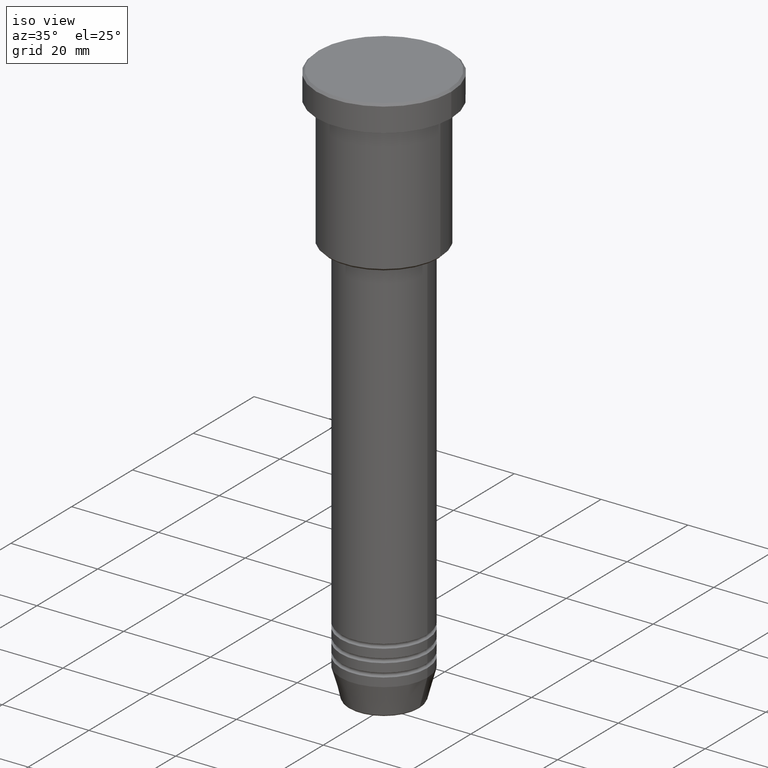
[diagram: clean part render]
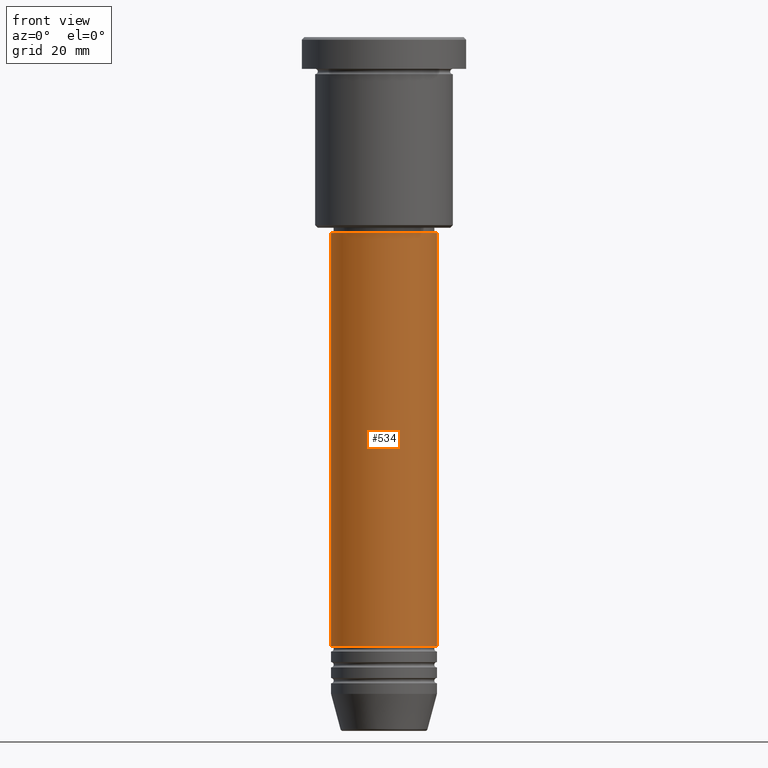
[diagram: tour spotlight — one face highlighted and labeled with its STEP entity id]
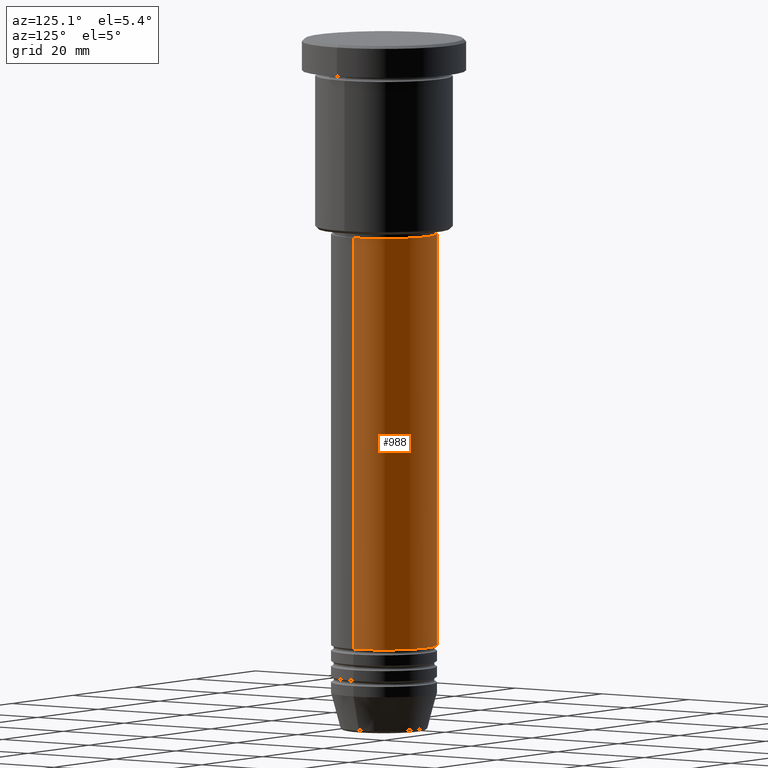
[diagram: tour spotlight — one face highlighted and labeled with its STEP entity id]
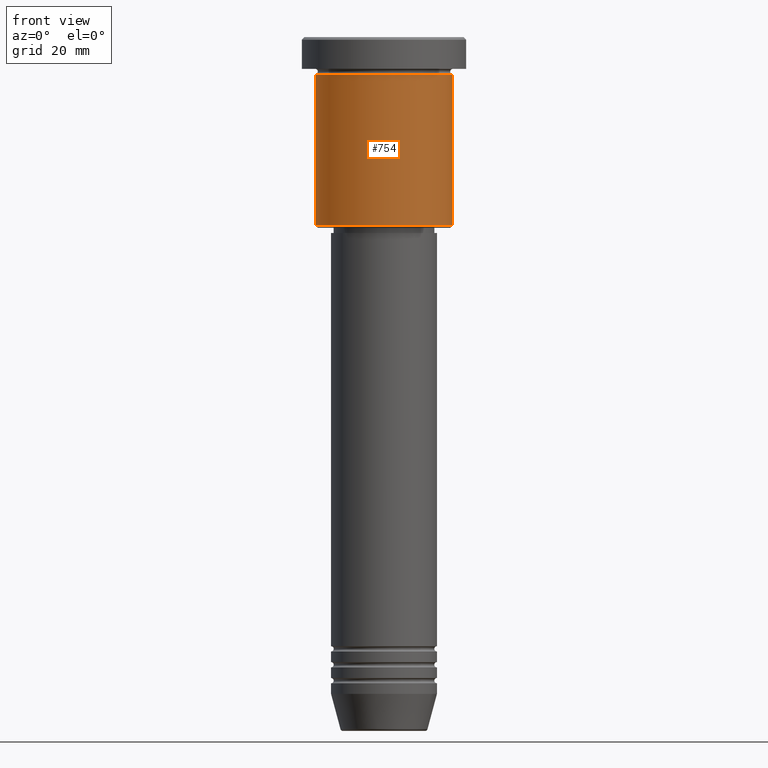
[diagram: tour spotlight — one face highlighted and labeled with its STEP entity id]
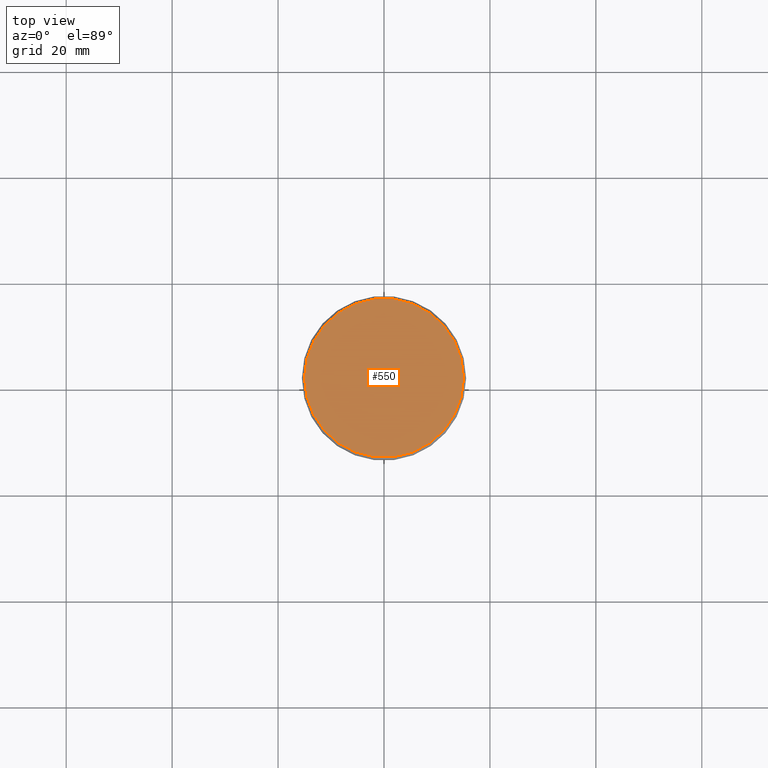
[diagram: tour spotlight — one face highlighted and labeled with its STEP entity id]
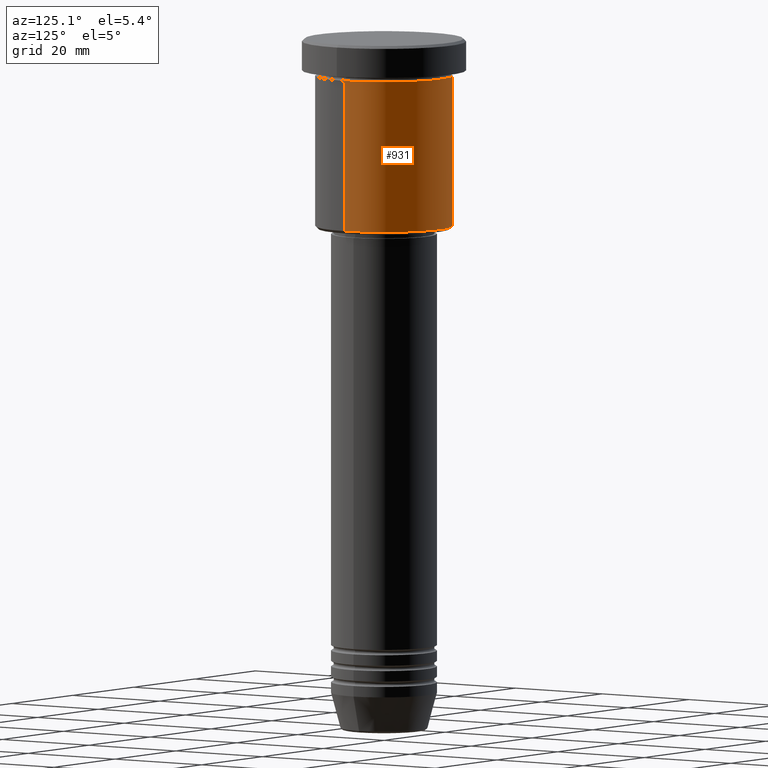
[diagram: tour spotlight — one face highlighted and labeled with its STEP entity id]
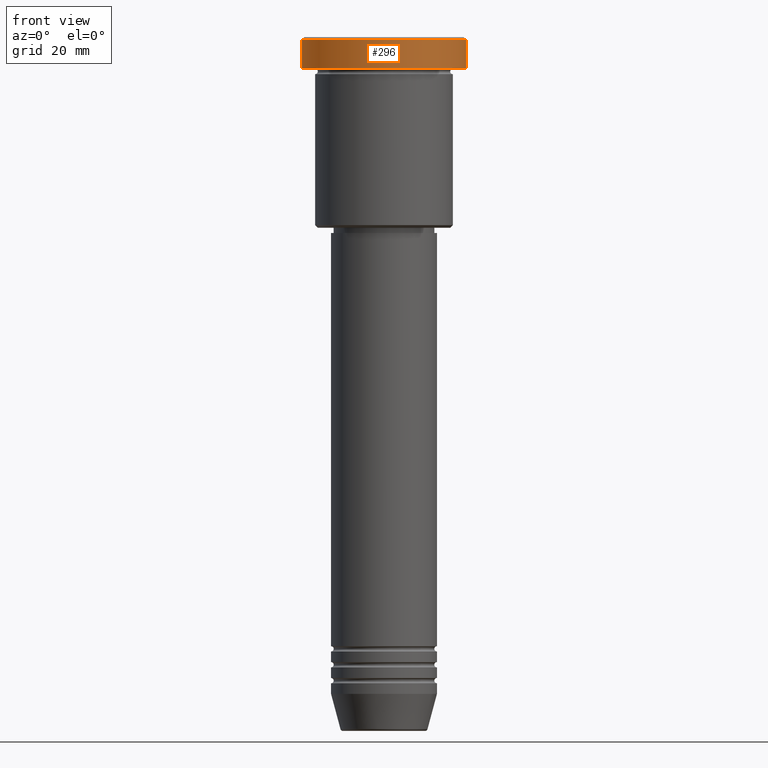
[diagram: tour spotlight — one face highlighted and labeled with its STEP entity id]
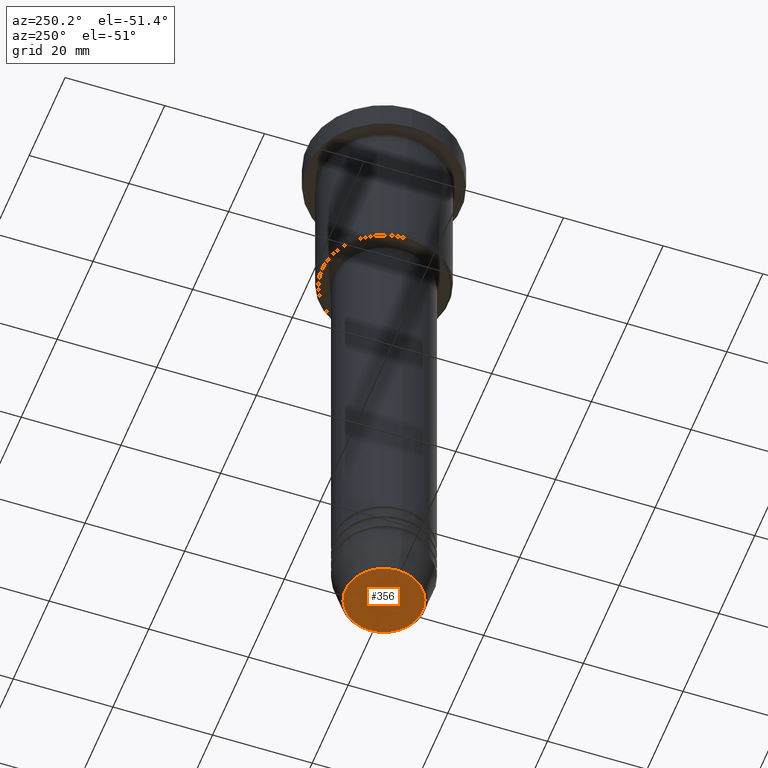
[diagram: tour spotlight — one face highlighted and labeled with its STEP entity id]
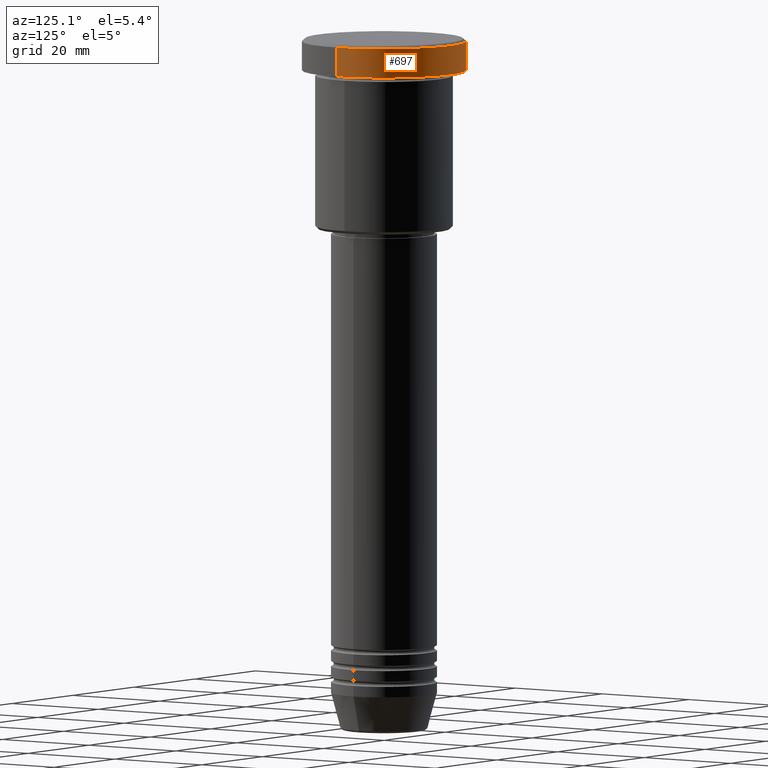
[diagram: tour spotlight — one face highlighted and labeled with its STEP entity id]
A machine part: a face-by-face anatomy tour. The part has 43 B-rep faces; the first image is the clean iso view, then the 8 largest visible faces are spotlighted one at a time (largest first), each with its STEP entity span.

Face 1 — front view, entity #534. In plain terms, the highlighted cylindrical surface (partial cylindrical patch) has radius 10 mm, axis along (-0, -0, 1).
Definition (entity closure, byte-faithful):
#5 = EDGE_CURVE ( 'NONE', #431, #73, #289, .T. ) ;
#66 = VERTEX_POINT ( 'NONE', #599 ) ;
#73 = VERTEX_POINT ( 'NONE', #426 ) ;
#83 = AXIS2_PLACEMENT_3D ( 'NONE', #932, #105, #1103 ) ;
#105 = DIRECTION ( 'NONE',  ( -0.000000000000000000, -0.000000000000000000, 1.000000000000000000 ) ) ;
#143 = DIRECTION ( 'NONE',  ( 1.000000000000000000, 0.000000000000000000, 0.000000000000000000 ) ) ;
#145 = CARTESIAN_POINT ( 'NONE',  ( 10.00000000000000000, 0.000000000000000000, 0.000000000000000000 ) ) ;
#224 = LINE ( 'NONE', #145, #639 ) ;
#263 = ORIENTED_EDGE ( 'NONE', *, *, #780, .F. ) ;
#289 = CIRCLE ( 'NONE', #83, 10.00000000000000000 ) ;
#311 = DIRECTION ( 'NONE',  ( 1.000000000000000000, 0.000000000000000000, 0.000000000000000000 ) ) ;
#334 = DIRECTION ( 'NONE',  ( -0.000000000000000000, -0.000000000000000000, 1.000000000000000000 ) ) ;
#382 = EDGE_LOOP ( 'NONE', ( #263, #1176, #889, #1098 ) ) ;
#401 = EDGE_CURVE ( 'NONE', #1168, #66, #992, .T. ) ;
#419 = CYLINDRICAL_SURFACE ( 'NONE', #1054, 10.00000000000000000 ) ;
#426 = CARTESIAN_POINT ( 'NONE',  ( 10.00000000000000000, 0.000000000000000000, -114.9999999999999574 ) ) ;
#431 = VERTEX_POINT ( 'NONE', #840 ) ;
#534 = ADVANCED_FACE ( 'NONE', ( #777 ), #419, .T. ) ;
#570 = DIRECTION ( 'NONE',  ( -0.000000000000000000, -0.000000000000000000, 1.000000000000000000 ) ) ;
#598 = CARTESIAN_POINT ( 'NONE',  ( 0.000000000000000000, 0.000000000000000000, 0.000000000000000000 ) ) ;
#599 = CARTESIAN_POINT ( 'NONE',  ( 10.00000000000000000, 0.000000000000000000, -37.00000000000000000 ) ) ;
#618 = AXIS2_PLACEMENT_3D ( 'NONE', #1125, #570, #311 ) ;
#639 = VECTOR ( 'NONE', #861, 1000.000000000000000 ) ;
#711 = CARTESIAN_POINT ( 'NONE',  ( -10.00000000000000000, 1.224646799147353256E-15, -37.00000000000000000 ) ) ;
#736 = DIRECTION ( 'NONE',  ( -0.000000000000000000, -0.000000000000000000, 1.000000000000000000 ) ) ;
#777 = FACE_OUTER_BOUND ( 'NONE', #382, .T. ) ;
#780 = EDGE_CURVE ( 'NONE', #431, #1168, #1030, .T. ) ;
#803 = VECTOR ( 'NONE', #736, 1000.000000000000000 ) ;
#840 = CARTESIAN_POINT ( 'NONE',  ( -10.00000000000000000, 1.224646799147353256E-15, -114.9999999999999574 ) ) ;
#861 = DIRECTION ( 'NONE',  ( -0.000000000000000000, -0.000000000000000000, 1.000000000000000000 ) ) ;
#889 = ORIENTED_EDGE ( 'NONE', *, *, #1140, .T. ) ;
#932 = CARTESIAN_POINT ( 'NONE',  ( 0.000000000000000000, 0.000000000000000000, -114.9999999999999574 ) ) ;
#992 = CIRCLE ( 'NONE', #618, 10.00000000000000000 ) ;
#1005 = CARTESIAN_POINT ( 'NONE',  ( -10.00000000000000000, 1.224646799147353256E-15, 0.000000000000000000 ) ) ;
#1030 = LINE ( 'NONE', #1005, #803 ) ;
#1054 = AXIS2_PLACEMENT_3D ( 'NONE', #598, #334, #143 ) ;
#1098 = ORIENTED_EDGE ( 'NONE', *, *, #401, .F. ) ;
#1103 = DIRECTION ( 'NONE',  ( 1.000000000000000000, 0.000000000000000000, 0.000000000000000000 ) ) ;
#1125 = CARTESIAN_POINT ( 'NONE',  ( 0.000000000000000000, 0.000000000000000000, -37.00000000000000000 ) ) ;
#1140 = EDGE_CURVE ( 'NONE', #73, #66, #224, .T. ) ;
#1168 = VERTEX_POINT ( 'NONE', #711 ) ;
#1176 = ORIENTED_EDGE ( 'NONE', *, *, #5, .T. ) ;

Face 2 — auxiliary view, entity #988. In plain terms, the highlighted cylindrical surface (partial cylindrical patch) has radius 10 mm, axis along (-0, -0, 1).
Definition (entity closure, byte-faithful):
#11 = DIRECTION ( 'NONE',  ( 1.000000000000000000, 0.000000000000000000, 0.000000000000000000 ) ) ;
#35 = DIRECTION ( 'NONE',  ( -0.000000000000000000, -0.000000000000000000, 1.000000000000000000 ) ) ;
#66 = VERTEX_POINT ( 'NONE', #599 ) ;
#73 = VERTEX_POINT ( 'NONE', #426 ) ;
#127 = EDGE_CURVE ( 'NONE', #66, #1168, #767, .T. ) ;
#145 = CARTESIAN_POINT ( 'NONE',  ( 10.00000000000000000, 0.000000000000000000, 0.000000000000000000 ) ) ;
#184 = ORIENTED_EDGE ( 'NONE', *, *, #792, .T. ) ;
#201 = CARTESIAN_POINT ( 'NONE',  ( 0.000000000000000000, 0.000000000000000000, -114.9999999999999574 ) ) ;
#220 = CYLINDRICAL_SURFACE ( 'NONE', #847, 10.00000000000000000 ) ;
#224 = LINE ( 'NONE', #145, #639 ) ;
#329 = AXIS2_PLACEMENT_3D ( 'NONE', #201, #929, #829 ) ;
#335 = CARTESIAN_POINT ( 'NONE',  ( 0.000000000000000000, 0.000000000000000000, -37.00000000000000000 ) ) ;
#340 = DIRECTION ( 'NONE',  ( 1.000000000000000000, 0.000000000000000000, 0.000000000000000000 ) ) ;
#426 = CARTESIAN_POINT ( 'NONE',  ( 10.00000000000000000, 0.000000000000000000, -114.9999999999999574 ) ) ;
#431 = VERTEX_POINT ( 'NONE', #840 ) ;
#464 = CIRCLE ( 'NONE', #329, 10.00000000000000000 ) ;
#503 = ORIENTED_EDGE ( 'NONE', *, *, #127, .F. ) ;
#578 = CARTESIAN_POINT ( 'NONE',  ( 0.000000000000000000, 0.000000000000000000, 0.000000000000000000 ) ) ;
#597 = EDGE_LOOP ( 'NONE', ( #184, #806, #503, #1167 ) ) ;
#599 = CARTESIAN_POINT ( 'NONE',  ( 10.00000000000000000, 0.000000000000000000, -37.00000000000000000 ) ) ;
#616 = AXIS2_PLACEMENT_3D ( 'NONE', #335, #35, #340 ) ;
#639 = VECTOR ( 'NONE', #861, 1000.000000000000000 ) ;
#665 = FACE_OUTER_BOUND ( 'NONE', #597, .T. ) ;
#711 = CARTESIAN_POINT ( 'NONE',  ( -10.00000000000000000, 1.224646799147353256E-15, -37.00000000000000000 ) ) ;
#736 = DIRECTION ( 'NONE',  ( -0.000000000000000000, -0.000000000000000000, 1.000000000000000000 ) ) ;
#767 = CIRCLE ( 'NONE', #616, 10.00000000000000000 ) ;
#780 = EDGE_CURVE ( 'NONE', #431, #1168, #1030, .T. ) ;
#792 = EDGE_CURVE ( 'NONE', #73, #431, #464, .T. ) ;
#803 = VECTOR ( 'NONE', #736, 1000.000000000000000 ) ;
#806 = ORIENTED_EDGE ( 'NONE', *, *, #780, .T. ) ;
#829 = DIRECTION ( 'NONE',  ( 1.000000000000000000, 0.000000000000000000, 0.000000000000000000 ) ) ;
#840 = CARTESIAN_POINT ( 'NONE',  ( -10.00000000000000000, 1.224646799147353256E-15, -114.9999999999999574 ) ) ;
#847 = AXIS2_PLACEMENT_3D ( 'NONE', #578, #1028, #11 ) ;
#861 = DIRECTION ( 'NONE',  ( -0.000000000000000000, -0.000000000000000000, 1.000000000000000000 ) ) ;
#929 = DIRECTION ( 'NONE',  ( -0.000000000000000000, -0.000000000000000000, 1.000000000000000000 ) ) ;
#988 = ADVANCED_FACE ( 'NONE', ( #665 ), #220, .T. ) ;
#1005 = CARTESIAN_POINT ( 'NONE',  ( -10.00000000000000000, 1.224646799147353256E-15, 0.000000000000000000 ) ) ;
#1028 = DIRECTION ( 'NONE',  ( -0.000000000000000000, -0.000000000000000000, 1.000000000000000000 ) ) ;
#1030 = LINE ( 'NONE', #1005, #803 ) ;
#1140 = EDGE_CURVE ( 'NONE', #73, #66, #224, .T. ) ;
#1167 = ORIENTED_EDGE ( 'NONE', *, *, #1140, .F. ) ;
#1168 = VERTEX_POINT ( 'NONE', #711 ) ;

Face 3 — front view, entity #754. In plain terms, the highlighted cylindrical surface (partial cylindrical patch) has radius 13 mm, axis along (-0, -0, 1).
Definition (entity closure, byte-faithful):
#38 = VERTEX_POINT ( 'NONE', #937 ) ;
#71 = CARTESIAN_POINT ( 'NONE',  ( -13.00000000000000000, 1.592040838891559095E-15, -35.49999999999999289 ) ) ;
#82 = ORIENTED_EDGE ( 'NONE', *, *, #723, .T. ) ;
#109 = CARTESIAN_POINT ( 'NONE',  ( 13.00000000000000000, 0.000000000000000000, -35.49999999999999289 ) ) ;
#164 = VERTEX_POINT ( 'NONE', #694 ) ;
#236 = AXIS2_PLACEMENT_3D ( 'NONE', #432, #617, #899 ) ;
#246 = EDGE_CURVE ( 'NONE', #814, #164, #996, .T. ) ;
#279 = EDGE_CURVE ( 'NONE', #730, #38, #448, .T. ) ;
#305 = DIRECTION ( 'NONE',  ( -0.000000000000000000, -0.000000000000000000, 1.000000000000000000 ) ) ;
#345 = VECTOR ( 'NONE', #372, 1000.000000000000000 ) ;
#368 = AXIS2_PLACEMENT_3D ( 'NONE', #588, #305, #731 ) ;
#369 = ORIENTED_EDGE ( 'NONE', *, *, #246, .T. ) ;
#372 = DIRECTION ( 'NONE',  ( -0.000000000000000000, -0.000000000000000000, 1.000000000000000000 ) ) ;
#389 = CYLINDRICAL_SURFACE ( 'NONE', #1055, 13.00000000000000000 ) ;
#396 = DIRECTION ( 'NONE',  ( -0.000000000000000000, -0.000000000000000000, 1.000000000000000000 ) ) ;
#432 = CARTESIAN_POINT ( 'NONE',  ( 0.000000000000000000, 0.000000000000000000, -35.49999999999999289 ) ) ;
#448 = LINE ( 'NONE', #529, #991 ) ;
#485 = DIRECTION ( 'NONE',  ( 1.000000000000000000, 0.000000000000000000, 0.000000000000000000 ) ) ;
#529 = CARTESIAN_POINT ( 'NONE',  ( -13.00000000000000000, 1.592040838891559095E-15, 0.000000000000000000 ) ) ;
#559 = ORIENTED_EDGE ( 'NONE', *, *, #279, .F. ) ;
#588 = CARTESIAN_POINT ( 'NONE',  ( 0.000000000000000000, 0.000000000000000000, -6.999999999999995559 ) ) ;
#617 = DIRECTION ( 'NONE',  ( -0.000000000000000000, -0.000000000000000000, 1.000000000000000000 ) ) ;
#632 = FACE_OUTER_BOUND ( 'NONE', #1100, .T. ) ;
#694 = CARTESIAN_POINT ( 'NONE',  ( 13.00000000000000000, 0.000000000000000000, -6.999999999999995559 ) ) ;
#708 = CARTESIAN_POINT ( 'NONE',  ( 13.00000000000000000, 0.000000000000000000, 0.000000000000000000 ) ) ;
#723 = EDGE_CURVE ( 'NONE', #730, #814, #747, .T. ) ;
#725 = DIRECTION ( 'NONE',  ( -0.000000000000000000, -0.000000000000000000, 1.000000000000000000 ) ) ;
#730 = VERTEX_POINT ( 'NONE', #71 ) ;
#731 = DIRECTION ( 'NONE',  ( 1.000000000000000000, 0.000000000000000000, 0.000000000000000000 ) ) ;
#747 = CIRCLE ( 'NONE', #236, 13.00000000000000000 ) ;
#754 = ADVANCED_FACE ( 'NONE', ( #632 ), #389, .T. ) ;
#814 = VERTEX_POINT ( 'NONE', #109 ) ;
#830 = EDGE_CURVE ( 'NONE', #38, #164, #958, .T. ) ;
#899 = DIRECTION ( 'NONE',  ( -1.000000000000000000, 0.000000000000000000, 0.000000000000000000 ) ) ;
#937 = CARTESIAN_POINT ( 'NONE',  ( -13.00000000000000000, 1.592040838891559095E-15, -6.999999999999995559 ) ) ;
#958 = CIRCLE ( 'NONE', #368, 13.00000000000000000 ) ;
#991 = VECTOR ( 'NONE', #725, 1000.000000000000000 ) ;
#996 = LINE ( 'NONE', #708, #345 ) ;
#998 = ORIENTED_EDGE ( 'NONE', *, *, #830, .F. ) ;
#1055 = AXIS2_PLACEMENT_3D ( 'NONE', #1180, #396, #485 ) ;
#1100 = EDGE_LOOP ( 'NONE', ( #559, #82, #369, #998 ) ) ;
#1180 = CARTESIAN_POINT ( 'NONE',  ( 0.000000000000000000, 0.000000000000000000, 0.000000000000000000 ) ) ;

Face 4 — top view, entity #550. In plain terms, the highlighted planar face has unit normal (0, -0, 1).
Definition (entity closure, byte-faithful):
#6 = ORIENTED_EDGE ( 'NONE', *, *, #417, .T. ) ;
#77 = CARTESIAN_POINT ( 'NONE',  ( 15.00000000000002665, 1.867586368699715348E-15, 0.000000000000000000 ) ) ;
#103 = CARTESIAN_POINT ( 'NONE',  ( 0.000000000000000000, 0.000000000000000000, 0.000000000000000000 ) ) ;
#111 = AXIS2_PLACEMENT_3D ( 'NONE', #871, #428, #226 ) ;
#119 = CARTESIAN_POINT ( 'NONE',  ( -15.00000000000002665, 0.000000000000000000, 0.000000000000000000 ) ) ;
#226 = DIRECTION ( 'NONE',  ( 1.000000000000000000, 0.000000000000000000, 0.000000000000000000 ) ) ;
#256 = AXIS2_PLACEMENT_3D ( 'NONE', #103, #468, #850 ) ;
#267 = VERTEX_POINT ( 'NONE', #77 ) ;
#287 = DIRECTION ( 'NONE',  ( 1.000000000000000000, 0.000000000000000000, 0.000000000000000000 ) ) ;
#417 = EDGE_CURVE ( 'NONE', #267, #775, #688, .T. ) ;
#428 = DIRECTION ( 'NONE',  ( 0.000000000000000000, -0.000000000000000000, 1.000000000000000000 ) ) ;
#468 = DIRECTION ( 'NONE',  ( -0.000000000000000000, -0.000000000000000000, 1.000000000000000000 ) ) ;
#475 = EDGE_CURVE ( 'NONE', #775, #267, #1034, .T. ) ;
#478 = ORIENTED_EDGE ( 'NONE', *, *, #475, .T. ) ;
#499 = PLANE ( 'NONE',  #111 ) ;
#550 = ADVANCED_FACE ( 'NONE', ( #1040 ), #499, .T. ) ;
#688 = CIRCLE ( 'NONE', #256, 15.00000000000002665 ) ;
#698 = EDGE_LOOP ( 'NONE', ( #478, #6 ) ) ;
#775 = VERTEX_POINT ( 'NONE', #119 ) ;
#831 = DIRECTION ( 'NONE',  ( -0.000000000000000000, -0.000000000000000000, 1.000000000000000000 ) ) ;
#850 = DIRECTION ( 'NONE',  ( 1.000000000000000000, 0.000000000000000000, 0.000000000000000000 ) ) ;
#871 = CARTESIAN_POINT ( 'NONE',  ( 0.000000000000000000, 0.000000000000000000, 0.000000000000000000 ) ) ;
#938 = AXIS2_PLACEMENT_3D ( 'NONE', #1102, #831, #287 ) ;
#1034 = CIRCLE ( 'NONE', #938, 15.00000000000002665 ) ;
#1040 = FACE_OUTER_BOUND ( 'NONE', #698, .T. ) ;
#1102 = CARTESIAN_POINT ( 'NONE',  ( 0.000000000000000000, 0.000000000000000000, 0.000000000000000000 ) ) ;

Face 5 — auxiliary view, entity #931. In plain terms, the highlighted cylindrical surface (partial cylindrical patch) has radius 13 mm, axis along (-0, -0, 1).
Definition (entity closure, byte-faithful):
#15 = CARTESIAN_POINT ( 'NONE',  ( 0.000000000000000000, 0.000000000000000000, -35.49999999999999289 ) ) ;
#38 = VERTEX_POINT ( 'NONE', #937 ) ;
#60 = EDGE_CURVE ( 'NONE', #164, #38, #1032, .T. ) ;
#71 = CARTESIAN_POINT ( 'NONE',  ( -13.00000000000000000, 1.592040838891559095E-15, -35.49999999999999289 ) ) ;
#94 = DIRECTION ( 'NONE',  ( -0.000000000000000000, -0.000000000000000000, 1.000000000000000000 ) ) ;
#109 = CARTESIAN_POINT ( 'NONE',  ( 13.00000000000000000, 0.000000000000000000, -35.49999999999999289 ) ) ;
#115 = DIRECTION ( 'NONE',  ( -0.000000000000000000, -0.000000000000000000, 1.000000000000000000 ) ) ;
#164 = VERTEX_POINT ( 'NONE', #694 ) ;
#171 = ORIENTED_EDGE ( 'NONE', *, *, #246, .F. ) ;
#211 = CARTESIAN_POINT ( 'NONE',  ( 0.000000000000000000, 0.000000000000000000, 0.000000000000000000 ) ) ;
#246 = EDGE_CURVE ( 'NONE', #814, #164, #996, .T. ) ;
#268 = EDGE_LOOP ( 'NONE', ( #999, #317, #675, #171 ) ) ;
#279 = EDGE_CURVE ( 'NONE', #730, #38, #448, .T. ) ;
#317 = ORIENTED_EDGE ( 'NONE', *, *, #279, .T. ) ;
#345 = VECTOR ( 'NONE', #372, 1000.000000000000000 ) ;
#372 = DIRECTION ( 'NONE',  ( -0.000000000000000000, -0.000000000000000000, 1.000000000000000000 ) ) ;
#441 = EDGE_CURVE ( 'NONE', #814, #730, #481, .T. ) ;
#448 = LINE ( 'NONE', #529, #991 ) ;
#481 = CIRCLE ( 'NONE', #975, 13.00000000000000000 ) ;
#488 = DIRECTION ( 'NONE',  ( 1.000000000000000000, 0.000000000000000000, 0.000000000000000000 ) ) ;
#520 = AXIS2_PLACEMENT_3D ( 'NONE', #591, #115, #488 ) ;
#529 = CARTESIAN_POINT ( 'NONE',  ( -13.00000000000000000, 1.592040838891559095E-15, 0.000000000000000000 ) ) ;
#566 = FACE_OUTER_BOUND ( 'NONE', #268, .T. ) ;
#591 = CARTESIAN_POINT ( 'NONE',  ( 0.000000000000000000, 0.000000000000000000, -6.999999999999995559 ) ) ;
#650 = DIRECTION ( 'NONE',  ( -0.000000000000000000, -0.000000000000000000, 1.000000000000000000 ) ) ;
#675 = ORIENTED_EDGE ( 'NONE', *, *, #60, .F. ) ;
#694 = CARTESIAN_POINT ( 'NONE',  ( 13.00000000000000000, 0.000000000000000000, -6.999999999999995559 ) ) ;
#708 = CARTESIAN_POINT ( 'NONE',  ( 13.00000000000000000, 0.000000000000000000, 0.000000000000000000 ) ) ;
#725 = DIRECTION ( 'NONE',  ( -0.000000000000000000, -0.000000000000000000, 1.000000000000000000 ) ) ;
#730 = VERTEX_POINT ( 'NONE', #71 ) ;
#753 = CYLINDRICAL_SURFACE ( 'NONE', #1035, 13.00000000000000000 ) ;
#758 = DIRECTION ( 'NONE',  ( -1.000000000000000000, 0.000000000000000000, 0.000000000000000000 ) ) ;
#814 = VERTEX_POINT ( 'NONE', #109 ) ;
#921 = DIRECTION ( 'NONE',  ( 1.000000000000000000, 0.000000000000000000, 0.000000000000000000 ) ) ;
#931 = ADVANCED_FACE ( 'NONE', ( #566 ), #753, .T. ) ;
#937 = CARTESIAN_POINT ( 'NONE',  ( -13.00000000000000000, 1.592040838891559095E-15, -6.999999999999995559 ) ) ;
#975 = AXIS2_PLACEMENT_3D ( 'NONE', #15, #650, #758 ) ;
#991 = VECTOR ( 'NONE', #725, 1000.000000000000000 ) ;
#996 = LINE ( 'NONE', #708, #345 ) ;
#999 = ORIENTED_EDGE ( 'NONE', *, *, #441, .T. ) ;
#1032 = CIRCLE ( 'NONE', #520, 13.00000000000000000 ) ;
#1035 = AXIS2_PLACEMENT_3D ( 'NONE', #211, #94, #921 ) ;

Face 6 — front view, entity #296. In plain terms, the highlighted cylindrical surface (partial cylindrical patch) has radius 15.5 mm, axis along (-0, -0, 1).
Definition (entity closure, byte-faithful):
#3 = ORIENTED_EDGE ( 'NONE', *, *, #457, .T. ) ;
#61 = CARTESIAN_POINT ( 'NONE',  ( -15.50000000000000000, 1.898202538678397557E-15, -0.4999999999999709677 ) ) ;
#88 = LINE ( 'NONE', #467, #787 ) ;
#92 = EDGE_CURVE ( 'NONE', #210, #628, #323, .T. ) ;
#149 = CIRCLE ( 'NONE', #562, 15.50000000000000000 ) ;
#157 = DIRECTION ( 'NONE',  ( -0.000000000000000000, -0.000000000000000000, 1.000000000000000000 ) ) ;
#168 = CARTESIAN_POINT ( 'NONE',  ( 0.000000000000000000, 0.000000000000000000, 0.000000000000000000 ) ) ;
#180 = EDGE_LOOP ( 'NONE', ( #471, #198, #308, #3 ) ) ;
#191 = AXIS2_PLACEMENT_3D ( 'NONE', #751, #1121, #306 ) ;
#198 = ORIENTED_EDGE ( 'NONE', *, *, #240, .T. ) ;
#210 = VERTEX_POINT ( 'NONE', #416 ) ;
#240 = EDGE_CURVE ( 'NONE', #947, #210, #149, .T. ) ;
#272 = AXIS2_PLACEMENT_3D ( 'NONE', #168, #1182, #626 ) ;
#286 = DIRECTION ( 'NONE',  ( -0.000000000000000000, -0.000000000000000000, 1.000000000000000000 ) ) ;
#291 = VECTOR ( 'NONE', #859, 1000.000000000000000 ) ;
#296 = ADVANCED_FACE ( 'NONE', ( #798 ), #454, .T. ) ;
#306 = DIRECTION ( 'NONE',  ( 1.000000000000000000, 0.000000000000000000, 0.000000000000000000 ) ) ;
#308 = ORIENTED_EDGE ( 'NONE', *, *, #92, .T. ) ;
#323 = LINE ( 'NONE', #954, #291 ) ;
#407 = CIRCLE ( 'NONE', #191, 15.50000000000000000 ) ;
#416 = CARTESIAN_POINT ( 'NONE',  ( 15.50000000000000000, 0.000000000000000000, -5.999999999999995559 ) ) ;
#454 = CYLINDRICAL_SURFACE ( 'NONE', #272, 15.50000000000000000 ) ;
#457 = EDGE_CURVE ( 'NONE', #628, #722, #407, .T. ) ;
#467 = CARTESIAN_POINT ( 'NONE',  ( -15.50000000000000000, 1.898202538678397557E-15, 0.000000000000000000 ) ) ;
#471 = ORIENTED_EDGE ( 'NONE', *, *, #863, .F. ) ;
#562 = AXIS2_PLACEMENT_3D ( 'NONE', #1175, #157, #894 ) ;
#626 = DIRECTION ( 'NONE',  ( 1.000000000000000000, 0.000000000000000000, 0.000000000000000000 ) ) ;
#628 = VERTEX_POINT ( 'NONE', #1088 ) ;
#670 = CARTESIAN_POINT ( 'NONE',  ( -15.50000000000000000, 1.898202538678397557E-15, -5.999999999999995559 ) ) ;
#722 = VERTEX_POINT ( 'NONE', #61 ) ;
#751 = CARTESIAN_POINT ( 'NONE',  ( 0.000000000000000000, 0.000000000000000000, -0.4999999999999709677 ) ) ;
#787 = VECTOR ( 'NONE', #286, 1000.000000000000000 ) ;
#798 = FACE_OUTER_BOUND ( 'NONE', #180, .T. ) ;
#859 = DIRECTION ( 'NONE',  ( -0.000000000000000000, -0.000000000000000000, 1.000000000000000000 ) ) ;
#863 = EDGE_CURVE ( 'NONE', #947, #722, #88, .T. ) ;
#894 = DIRECTION ( 'NONE',  ( 1.000000000000000000, 0.000000000000000000, 0.000000000000000000 ) ) ;
#947 = VERTEX_POINT ( 'NONE', #670 ) ;
#954 = CARTESIAN_POINT ( 'NONE',  ( 15.50000000000000000, 0.000000000000000000, 0.000000000000000000 ) ) ;
#1088 = CARTESIAN_POINT ( 'NONE',  ( 15.50000000000000000, 0.000000000000000000, -0.4999999999999709677 ) ) ;
#1121 = DIRECTION ( 'NONE',  ( 0.000000000000000000, 0.000000000000000000, -1.000000000000000000 ) ) ;
#1175 = CARTESIAN_POINT ( 'NONE',  ( 0.000000000000000000, 0.000000000000000000, -5.999999999999995559 ) ) ;
#1182 = DIRECTION ( 'NONE',  ( -0.000000000000000000, -0.000000000000000000, 1.000000000000000000 ) ) ;

Face 7 — auxiliary view, entity #356. In plain terms, the highlighted planar face has unit normal (0, -0, 1).
Definition (entity closure, byte-faithful):
#10 = EDGE_CURVE ( 'NONE', #661, #836, #437, .T. ) ;
#72 = DIRECTION ( 'NONE',  ( 0.000000000000000000, -0.000000000000000000, 1.000000000000000000 ) ) ;
#76 = DIRECTION ( 'NONE',  ( 0.000000000000000000, 0.000000000000000000, -1.000000000000000000 ) ) ;
#113 = CIRCLE ( 'NONE', #217, 7.740692158992654726 ) ;
#217 = AXIS2_PLACEMENT_3D ( 'NONE', #344, #76, #802 ) ;
#344 = CARTESIAN_POINT ( 'NONE',  ( 0.000000000000000000, 0.000000000000000000, -131.0000000000000000 ) ) ;
#356 = ADVANCED_FACE ( 'NONE', ( #989 ), #542, .F. ) ;
#358 = DIRECTION ( 'NONE',  ( 1.000000000000000000, 0.000000000000000000, 0.000000000000000000 ) ) ;
#405 = EDGE_LOOP ( 'NONE', ( #1009, #951 ) ) ;
#437 = CIRCLE ( 'NONE', #1104, 7.740692158992654726 ) ;
#480 = AXIS2_PLACEMENT_3D ( 'NONE', #901, #72, #358 ) ;
#542 = PLANE ( 'NONE',  #480 ) ;
#641 = CARTESIAN_POINT ( 'NONE',  ( -7.740692158992654726, 9.775343368540039135E-16, -131.0000000000000000 ) ) ;
#661 = VERTEX_POINT ( 'NONE', #641 ) ;
#718 = EDGE_CURVE ( 'NONE', #836, #661, #113, .T. ) ;
#759 = DIRECTION ( 'NONE',  ( 1.000000000000000000, 0.000000000000000000, 0.000000000000000000 ) ) ;
#765 = CARTESIAN_POINT ( 'NONE',  ( 0.000000000000000000, 0.000000000000000000, -131.0000000000000000 ) ) ;
#802 = DIRECTION ( 'NONE',  ( 1.000000000000000000, 0.000000000000000000, 0.000000000000000000 ) ) ;
#836 = VERTEX_POINT ( 'NONE', #1095 ) ;
#901 = CARTESIAN_POINT ( 'NONE',  ( 0.000000000000000000, 0.000000000000000000, -131.0000000000000000 ) ) ;
#951 = ORIENTED_EDGE ( 'NONE', *, *, #10, .T. ) ;
#989 = FACE_OUTER_BOUND ( 'NONE', #405, .T. ) ;
#1009 = ORIENTED_EDGE ( 'NONE', *, *, #718, .T. ) ;
#1095 = CARTESIAN_POINT ( 'NONE',  ( 7.740692158992654726, 0.000000000000000000, -131.0000000000000000 ) ) ;
#1104 = AXIS2_PLACEMENT_3D ( 'NONE', #765, #1128, #759 ) ;
#1128 = DIRECTION ( 'NONE',  ( 0.000000000000000000, 0.000000000000000000, -1.000000000000000000 ) ) ;

Face 8 — auxiliary view, entity #697. In plain terms, the highlighted cylindrical surface (partial cylindrical patch) has radius 15.5 mm, axis along (-0, -0, 1).
Definition (entity closure, byte-faithful):
#18 = CARTESIAN_POINT ( 'NONE',  ( 0.000000000000000000, 0.000000000000000000, -5.999999999999995559 ) ) ;
#29 = DIRECTION ( 'NONE',  ( 1.000000000000000000, 0.000000000000000000, 0.000000000000000000 ) ) ;
#32 = EDGE_CURVE ( 'NONE', #210, #947, #936, .T. ) ;
#61 = CARTESIAN_POINT ( 'NONE',  ( -15.50000000000000000, 1.898202538678397557E-15, -0.4999999999999709677 ) ) ;
#64 = FACE_OUTER_BOUND ( 'NONE', #1160, .T. ) ;
#88 = LINE ( 'NONE', #467, #787 ) ;
#92 = EDGE_CURVE ( 'NONE', #210, #628, #323, .T. ) ;
#98 = DIRECTION ( 'NONE',  ( 0.000000000000000000, 0.000000000000000000, -1.000000000000000000 ) ) ;
#128 = AXIS2_PLACEMENT_3D ( 'NONE', #18, #315, #1041 ) ;
#156 = CARTESIAN_POINT ( 'NONE',  ( 0.000000000000000000, 0.000000000000000000, 0.000000000000000000 ) ) ;
#210 = VERTEX_POINT ( 'NONE', #416 ) ;
#286 = DIRECTION ( 'NONE',  ( -0.000000000000000000, -0.000000000000000000, 1.000000000000000000 ) ) ;
#291 = VECTOR ( 'NONE', #859, 1000.000000000000000 ) ;
#315 = DIRECTION ( 'NONE',  ( -0.000000000000000000, -0.000000000000000000, 1.000000000000000000 ) ) ;
#323 = LINE ( 'NONE', #954, #291 ) ;
#342 = ORIENTED_EDGE ( 'NONE', *, *, #393, .T. ) ;
#393 = EDGE_CURVE ( 'NONE', #722, #628, #897, .T. ) ;
#416 = CARTESIAN_POINT ( 'NONE',  ( 15.50000000000000000, 0.000000000000000000, -5.999999999999995559 ) ) ;
#458 = ORIENTED_EDGE ( 'NONE', *, *, #92, .F. ) ;
#467 = CARTESIAN_POINT ( 'NONE',  ( -15.50000000000000000, 1.898202538678397557E-15, 0.000000000000000000 ) ) ;
#487 = CARTESIAN_POINT ( 'NONE',  ( 0.000000000000000000, 0.000000000000000000, -0.4999999999999709677 ) ) ;
#554 = DIRECTION ( 'NONE',  ( 1.000000000000000000, 0.000000000000000000, 0.000000000000000000 ) ) ;
#628 = VERTEX_POINT ( 'NONE', #1088 ) ;
#670 = CARTESIAN_POINT ( 'NONE',  ( -15.50000000000000000, 1.898202538678397557E-15, -5.999999999999995559 ) ) ;
#697 = ADVANCED_FACE ( 'NONE', ( #64 ), #1000, .T. ) ;
#719 = DIRECTION ( 'NONE',  ( -0.000000000000000000, -0.000000000000000000, 1.000000000000000000 ) ) ;
#722 = VERTEX_POINT ( 'NONE', #61 ) ;
#787 = VECTOR ( 'NONE', #286, 1000.000000000000000 ) ;
#834 = ORIENTED_EDGE ( 'NONE', *, *, #863, .T. ) ;
#859 = DIRECTION ( 'NONE',  ( -0.000000000000000000, -0.000000000000000000, 1.000000000000000000 ) ) ;
#863 = EDGE_CURVE ( 'NONE', #947, #722, #88, .T. ) ;
#879 = AXIS2_PLACEMENT_3D ( 'NONE', #487, #98, #29 ) ;
#897 = CIRCLE ( 'NONE', #879, 15.50000000000000000 ) ;
#903 = ORIENTED_EDGE ( 'NONE', *, *, #32, .T. ) ;
#936 = CIRCLE ( 'NONE', #128, 15.50000000000000000 ) ;
#947 = VERTEX_POINT ( 'NONE', #670 ) ;
#954 = CARTESIAN_POINT ( 'NONE',  ( 15.50000000000000000, 0.000000000000000000, 0.000000000000000000 ) ) ;
#1000 = CYLINDRICAL_SURFACE ( 'NONE', #1074, 15.50000000000000000 ) ;
#1041 = DIRECTION ( 'NONE',  ( 1.000000000000000000, 0.000000000000000000, 0.000000000000000000 ) ) ;
#1074 = AXIS2_PLACEMENT_3D ( 'NONE', #156, #719, #554 ) ;
#1088 = CARTESIAN_POINT ( 'NONE',  ( 15.50000000000000000, 0.000000000000000000, -0.4999999999999709677 ) ) ;
#1160 = EDGE_LOOP ( 'NONE', ( #903, #834, #342, #458 ) ) ;